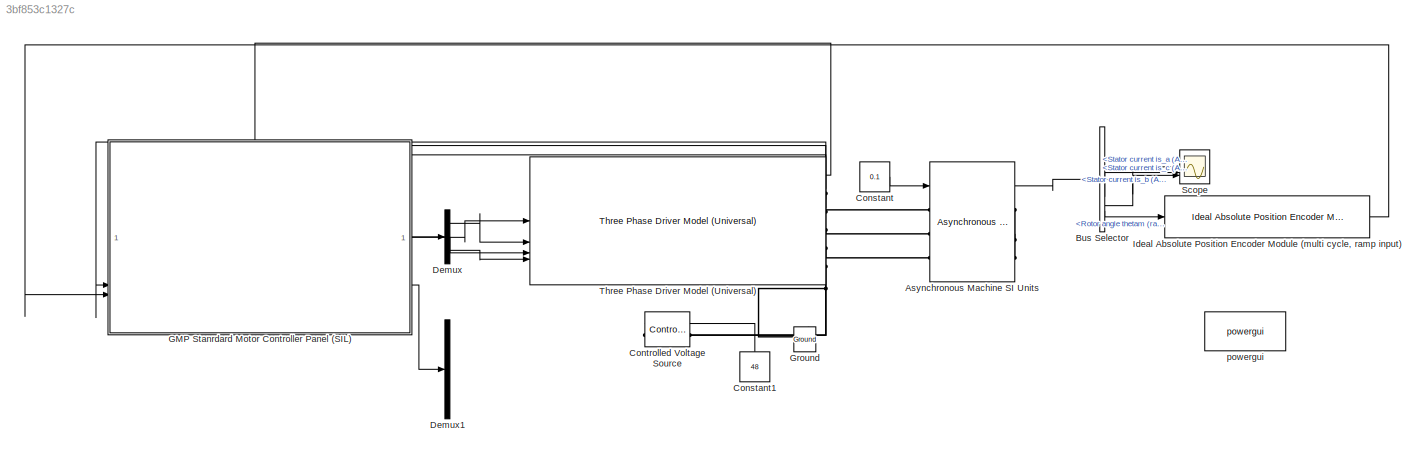
MODEL slx_3bf853c1327c
KIND model
CONFIG AbsTol = auto
CONFIG EnableMultiTasking = off
CONFIG FixedStep = auto
CONFIG MaxStep = auto
CONFIG MinStep = auto
CONFIG RelTol = 1e-3
CONFIG SampleTimeConstraint = Unconstrained
CONFIG SolverName = VariableStepAuto
CONFIG StartTime = 0.0
CONFIG StopTime = 10.0
BLOCK [Reference] Asynchronous Machine SI Units  REF=spsAsynchronousMachineSIUnitsLib/Asynchronous Machine
SI Units
  LibrarySourceBlock = sps_lib/Electrical Machines/Asynchronous Machine\nSI Units
  SourceBlock = spsAsynchronousMachineSIUnitsLib/Asynchronous Machine\nSI Units
  SourceType = Asynchronous Machine
BLOCK [BusSelector] Bus Selector
  OutputSignals = Stator measurements.Stator current is_a (A),Stator measurements.Stator current is_b (A),Stator measurements.Stator current is_c (A),Mechanical.Rotor angle thetam (rad)
BLOCK [Constant] Constant
  Value = 0.1
BLOCK [Constant] Constant1
  NameLocation = right
  Value = 48
BLOCK [Reference] Controlled Voltage Source  REF=spsControlledVoltageSourceLib/Controlled Voltage Source
  LibrarySourceBlock = sps_lib/Sources/Controlled Voltage Source
  NameLocation = right
  SourceBlock = spsControlledVoltageSourceLib/Controlled Voltage Source
  SourceType = Controlled Voltage Source
BLOCK [Demux] Demux
  Outputs = 3
BLOCK [Demux] Demux1
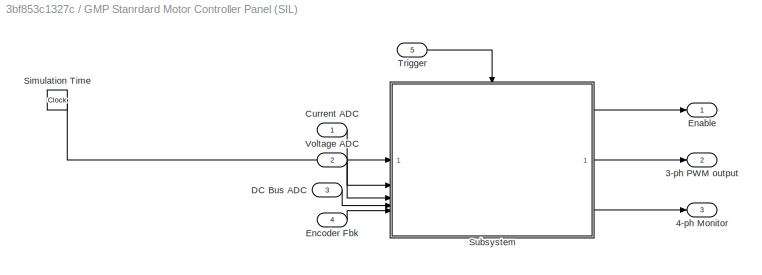
BLOCK [SubSystem] GMP Stanrdard Motor Controller Panel (SIL)
  PortSchema = {"entries":[{"content":{"sides":[{"content":{"connectorIds":["In1","In2","In3","In4"]},"type":"ConnectorPlacement.EquallySpacedRectSide","uuid":"92070e77-c4d8-4bd6-a20f-015d90d53703"},{"content":{"connectorIds":["Out1","Out2","Out3"],"side":"RIGHT"},"type":"ConnectorPlacement.EquallySpacedRectSide","uuid":"cd227558-01ea-4976-b12d-cc815f5c8239"},{"content":{"connectorIds":["In5"],"side":"TOP"},"typ...<+277ch>
BLOCK [Outport] GMP Stanrdard Motor Controller Panel (SIL)/3-ph PWM output
  Port = 2
BLOCK [Outport] GMP Stanrdard Motor Controller Panel (SIL)/4-ph Monitor
  Port = 3
BLOCK [Inport] GMP Stanrdard Motor Controller Panel (SIL)/Current ADC
BLOCK [Inport] GMP Stanrdard Motor Controller Panel (SIL)/DC Bus ADC
  Port = 3
BLOCK [Outport] GMP Stanrdard Motor Controller Panel (SIL)/Enable
BLOCK [Inport] GMP Stanrdard Motor Controller Panel (SIL)/Encoder Fbk
  Port = 4
BLOCK [Clock] GMP Stanrdard Motor Controller Panel (SIL)/Simulation Time
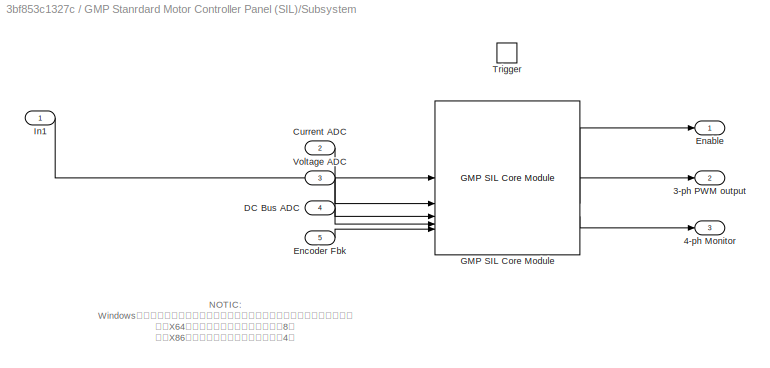
BLOCK [SubSystem] GMP Stanrdard Motor Controller Panel (SIL)/Subsystem
BLOCK [Outport] GMP Stanrdard Motor Controller Panel (SIL)/Subsystem/3-ph PWM output
  Port = 2
BLOCK [Outport] GMP Stanrdard Motor Controller Panel (SIL)/Subsystem/4-ph Monitor
  Port = 3
BLOCK [Inport] GMP Stanrdard Motor Controller Panel (SIL)/Subsystem/Current ADC
  Port = 2
BLOCK [Inport] GMP Stanrdard Motor Controller Panel (SIL)/Subsystem/DC Bus ADC
  Port = 4
BLOCK [Outport] GMP Stanrdard Motor Controller Panel (SIL)/Subsystem/Enable
BLOCK [Inport] GMP Stanrdard Motor Controller Panel (SIL)/Subsystem/Encoder Fbk
  Port = 5
BLOCK [Reference] GMP Stanrdard Motor Controller Panel (SIL)/Subsystem/GMP SIL Core Module  REF=gmp_sil_core_pack/GMP SIL Core Module
  SourceBlock = gmp_sil_core_pack/GMP SIL Core Module
  SourceProductName = GMP SIL Core Utilities
  SourceType = GMP CTL SIL Core
BLOCK [Inport] GMP Stanrdard Motor Controller Panel (SIL)/Subsystem/In1
BLOCK [TriggerPort] GMP Stanrdard Motor Controller Panel (SIL)/Subsystem/Trigger
  PortDimensions = 1
  StatesWhenEnabling = held
  VariantControl = (inherit)
BLOCK [Inport] GMP Stanrdard Motor Controller Panel (SIL)/Subsystem/Voltage ADC
  Port = 3
BLOCK [Inport] GMP Stanrdard Motor Controller Panel (SIL)/Trigger
  Port = 5
BLOCK [Inport] GMP Stanrdard Motor Controller Panel (SIL)/Voltage ADC
  Port = 2
BLOCK [Reference] Ground  REF=spsGroundLib/Ground
  LibrarySourceBlock = sps_lib/Utilities/Ground
  NameLocation = right
  SourceBlock = spsGroundLib/Ground
  SourceType = Ground
BLOCK [Reference] Ideal Absolute Position Encoder Module (multi cycle, ramp input)  REF=peripheral_utilities/Ideal Absolute Position Encoder Module (multi cycle, ramp input)
  SourceBlock = peripheral_utilities/Ideal Absolute Position Encoder Module (multi cycle, ramp input)
  SourceProductName = Virtual Peripheral Utilities
BLOCK [Scope] Scope
  Floating = off
  NumInputPorts = 3
  ScopeSpecificationString = Simulink.scopes.TimeScopeBlockCfg('CurrentConfiguration', extmgr.ConfigurationSet(extmgr.Configuration('Core','General UI',true),extmgr.Configuration('Core','Source UI',true),extmgr.Configuration('Sources','WiredSimulink',true),extmgr.Configuration('Visuals','Time Domain',true,'SerializedDisplays',{struct('MinYLimReal','-0.0000000000001','MaxYLimReal','0.0000000000001','YLabelReal','','MinYLimMag'...<+1467ch>
BLOCK [Reference] Three Phase Driver Model (Universal)  REF=peripheral_utilities/Three Phase Driver Model (Universal)
  SourceBlock = peripheral_utilities/Three Phase Driver Model (Universal)
  SourceProductName = Virtual Peripheral Utilities
BLOCK [Reference] powergui  REF=sps_lib/powergui
  LibrarySourceBlock = sps_lib/powergui
  Priority = 1
  SourceBlock = sps_lib/powergui
  SourceType = PSB option menu block
ANNOTATION GMP Stanrdard Motor Controller Panel (SIL)/Subsystem: NOTIC: Windows平台下必须设置为正确的内存对齐方式，否则会导致收到的数据乱码！ 对于X64的编译方式，默认的内存对齐为8； 对于X86的编译方式，默认的内存对齐为4。
LINE Asynchronous Machine SI Units:1 -> Bus Selector:1
LINE Bus Selector:1 -> Scope:1
LINE Bus Selector:2 -> Scope:2
LINE Bus Selector:3 -> Scope:3
LINE Bus Selector:4 -> Ideal Absolute Position Encoder Module (multi cycle, ramp input):1
LINE Constant1:1 -> Controlled Voltage Source:1
LINE Constant:1 -> Asynchronous Machine SI Units:1
LINE Demux:1 -> Three Phase Driver Model (Universal):2
LINE Demux:2 -> Three Phase Driver Model (Universal):3
LINE Demux:3 -> Three Phase Driver Model (Universal):4
LINE GMP Stanrdard Motor Controller Panel (SIL)/Current ADC:1 -> GMP Stanrdard Motor Controller Panel (SIL)/Subsystem:2
LINE GMP Stanrdard Motor Controller Panel (SIL)/DC Bus ADC:1 -> GMP Stanrdard Motor Controller Panel (SIL)/Subsystem:4
LINE GMP Stanrdard Motor Controller Panel (SIL)/Encoder Fbk:1 -> GMP Stanrdard Motor Controller Panel (SIL)/Subsystem:5
LINE GMP Stanrdard Motor Controller Panel (SIL)/Simulation Time:1 -> GMP Stanrdard Motor Controller Panel (SIL)/Subsystem:1
LINE GMP Stanrdard Motor Controller Panel (SIL)/Subsystem/Current ADC:1 -> GMP Stanrdard Motor Controller Panel (SIL)/Subsystem/GMP SIL Core Module:2
LINE GMP Stanrdard Motor Controller Panel (SIL)/Subsystem/DC Bus ADC:1 -> GMP Stanrdard Motor Controller Panel (SIL)/Subsystem/GMP SIL Core Module:4
LINE GMP Stanrdard Motor Controller Panel (SIL)/Subsystem/Encoder Fbk:1 -> GMP Stanrdard Motor Controller Panel (SIL)/Subsystem/GMP SIL Core Module:5
LINE GMP Stanrdard Motor Controller Panel (SIL)/Subsystem/GMP SIL Core Module:1 -> GMP Stanrdard Motor Controller Panel (SIL)/Subsystem/Enable:1
LINE GMP Stanrdard Motor Controller Panel (SIL)/Subsystem/GMP SIL Core Module:2 -> GMP Stanrdard Motor Controller Panel (SIL)/Subsystem/3-ph PWM output:1
LINE GMP Stanrdard Motor Controller Panel (SIL)/Subsystem/GMP SIL Core Module:3 -> GMP Stanrdard Motor Controller Panel (SIL)/Subsystem/4-ph Monitor:1
LINE GMP Stanrdard Motor Controller Panel (SIL)/Subsystem/In1:1 -> GMP Stanrdard Motor Controller Panel (SIL)/Subsystem/GMP SIL Core Module:1
LINE GMP Stanrdard Motor Controller Panel (SIL)/Subsystem/Voltage ADC:1 -> GMP Stanrdard Motor Controller Panel (SIL)/Subsystem/GMP SIL Core Module:3
LINE GMP Stanrdard Motor Controller Panel (SIL)/Subsystem:1 -> GMP Stanrdard Motor Controller Panel (SIL)/Enable:1
LINE GMP Stanrdard Motor Controller Panel (SIL)/Subsystem:2 -> GMP Stanrdard Motor Controller Panel (SIL)/3-ph PWM output:1
LINE GMP Stanrdard Motor Controller Panel (SIL)/Subsystem:3 -> GMP Stanrdard Motor Controller Panel (SIL)/4-ph Monitor:1
LINE GMP Stanrdard Motor Controller Panel (SIL)/Trigger:1 -> GMP Stanrdard Motor Controller Panel (SIL)/Subsystem:trigger
LINE GMP Stanrdard Motor Controller Panel (SIL)/Voltage ADC:1 -> GMP Stanrdard Motor Controller Panel (SIL)/Subsystem:3
LINE GMP Stanrdard Motor Controller Panel (SIL):1 -> Three Phase Driver Model (Universal):1
LINE GMP Stanrdard Motor Controller Panel (SIL):2 -> Demux:1
LINE GMP Stanrdard Motor Controller Panel (SIL):3 -> Demux1:1
LINE Ideal Absolute Position Encoder Module (multi cycle, ramp input):1 -> GMP Stanrdard Motor Controller Panel (SIL):4
LINE Three Phase Driver Model (Universal):1 -> GMP Stanrdard Motor Controller Panel (SIL):5
LINE Three Phase Driver Model (Universal):2 -> GMP Stanrdard Motor Controller Panel (SIL):1
LINE Three Phase Driver Model (Universal):3 -> GMP Stanrdard Motor Controller Panel (SIL):2
LINE Three Phase Driver Model (Universal):4 -> GMP Stanrdard Motor Controller Panel (SIL):3
PLINE Asynchronous Machine SI Units:LConn1 -- Three Phase Driver Model (Universal):RConn1
PLINE Asynchronous Machine SI Units:LConn2 -- Three Phase Driver Model (Universal):RConn2
PLINE Asynchronous Machine SI Units:LConn3 -- Three Phase Driver Model (Universal):RConn3
PNET net1: Asynchronous Machine SI Units:RConn1 -- Asynchronous Machine SI Units:RConn2 -- Asynchronous Machine SI Units:RConn3
PNET net2: Controlled Voltage Source:LConn1 -- Ground:LConn1 -- Three Phase Driver Model (Universal):RConn5
PLINE Controlled Voltage Source:RConn1 -- Three Phase Driver Model (Universal):RConn4
note: PNET lines group multi-terminal physical nets as a canonical sorted terminal list (undirected conserving connections); 2-terminal nets keep the pairwise PLINE form
